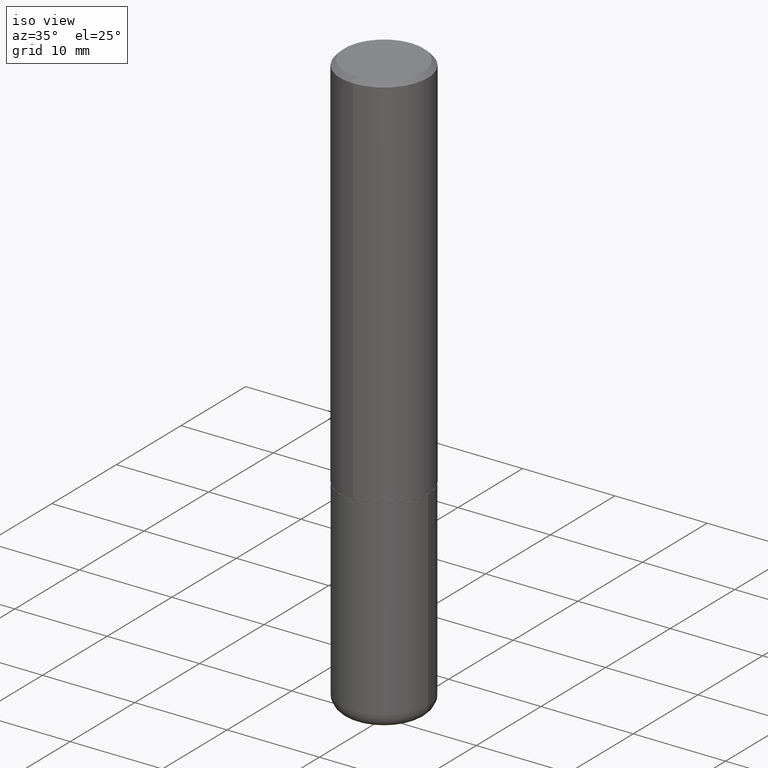
[diagram: clean part render]
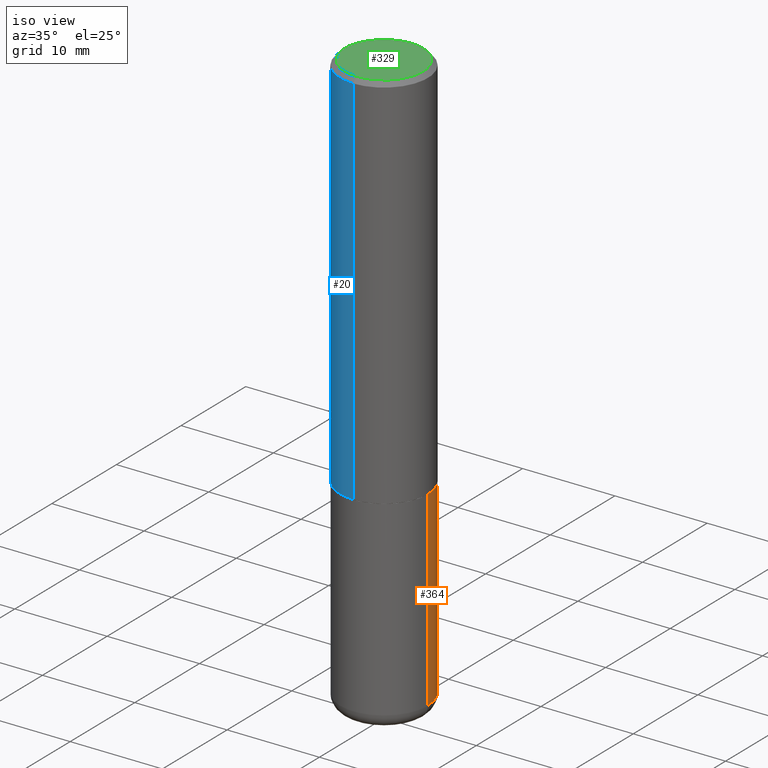
[diagram: same view with three faces highlighted in distinct colors, each labeled with its STEP entity id]
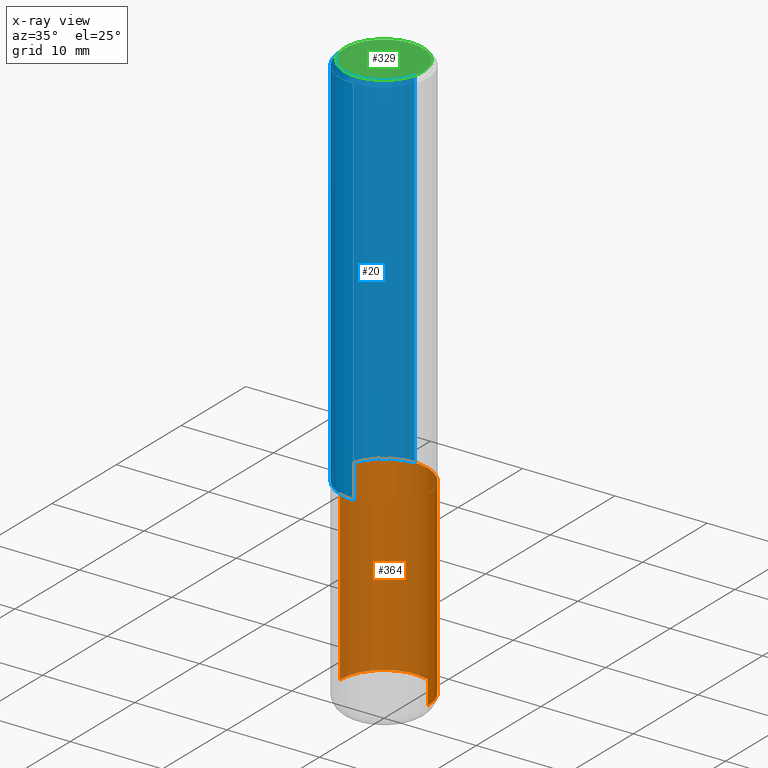
[diagram: x-ray of the same camera — body ghosted, the three highlighted faces saturated]
A machine part, iso view with three faces highlighted in distinct colors.
The next image is the same camera in x-ray (body ghosted, the three faces saturated) — at least one of them is partly hidden behind the body in this view.
Their STEP definitions:

[orange] entity #364 — the highlighted cylindrical surface (partial cylindrical patch) has radius 4.7625 mm, axis along (-0, 0, 1).
#1 = AXIS2_PLACEMENT_3D ( 'NONE', #33, #59, #215 ) ;
#16 = CARTESIAN_POINT ( 'NONE',  ( -0.1875000000000001110, -7.186946837227087200E-15, -2.440000000000000391 ) ) ;
#29 = CARTESIAN_POINT ( 'NONE',  ( 0.000000000000000000, 0.000000000000000000, 0.000000000000000000 ) ) ;
#32 = EDGE_LOOP ( 'NONE', ( #93, #320, #287, #91 ) ) ;
#33 = CARTESIAN_POINT ( 'NONE',  ( 3.973886810050848091E-29, -5.673657175620113002E-15, -1.625000000000000222 ) ) ;
#58 = DIRECTION ( 'NONE',  ( 1.000000000000000000, -6.982962677686266711E-15, 4.876176775795935793E-29 ) ) ;
#59 = DIRECTION ( 'NONE',  ( -2.445468806185136597E-29, 3.491481338843145583E-15, 1.000000000000000000 ) ) ;
#76 = AXIS2_PLACEMENT_3D ( 'NONE', #119, #403, #337 ) ;
#81 = CIRCLE ( 'NONE', #1, 0.1875000000000000278 ) ;
#91 = ORIENTED_EDGE ( 'NONE', *, *, #285, .F. ) ;
#93 = ORIENTED_EDGE ( 'NONE', *, *, #236, .T. ) ;
#106 = CARTESIAN_POINT ( 'NONE',  ( -0.1874999999999999722, 1.332267629550187651E-15, -9.223003294227946589E-30 ) ) ;
#119 = CARTESIAN_POINT ( 'NONE',  ( 5.966943887091733341E-29, -8.519214466777275048E-15, -2.440000000000000391 ) ) ;
#144 = LINE ( 'NONE', #267, #231 ) ;
#164 = CARTESIAN_POINT ( 'NONE',  ( 0.1875000000000001110, -9.828519968843450056E-15, -2.440000000000000391 ) ) ;
#168 = VERTEX_POINT ( 'NONE', #310 ) ;
#215 = DIRECTION ( 'NONE',  ( 1.000000000000000000, -6.982962677686266711E-15, 0.000000000000000000 ) ) ;
#218 = VERTEX_POINT ( 'NONE', #222 ) ;
#222 = CARTESIAN_POINT ( 'NONE',  ( 0.1875000000000000278, -6.982962677686288010E-15, -1.625000000000000222 ) ) ;
#224 = EDGE_CURVE ( 'NONE', #218, #168, #81, .T. ) ;
#225 = CIRCLE ( 'NONE', #76, 0.1874999999999999722 ) ;
#231 = VECTOR ( 'NONE', #399, 39.37007874015748143 ) ;
#236 = EDGE_CURVE ( 'NONE', #348, #259, #225, .T. ) ;
#252 = CYLINDRICAL_SURFACE ( 'NONE', #383, 0.1874999999999999722 ) ;
#259 = VERTEX_POINT ( 'NONE', #16 ) ;
#267 = CARTESIAN_POINT ( 'NONE',  ( 0.1874999999999999722, -1.309305502066174811E-15, 9.142831454617378210E-30 ) ) ;
#268 = DIRECTION ( 'NONE',  ( -2.445468806185136877E-29, 3.491481338843145188E-15, 1.000000000000000000 ) ) ;
#285 = EDGE_CURVE ( 'NONE', #348, #218, #144, .T. ) ;
#287 = ORIENTED_EDGE ( 'NONE', *, *, #224, .F. ) ;
#310 = CARTESIAN_POINT ( 'NONE',  ( -0.1875000000000000278, -5.764168191648507360E-15, -1.625000000000000222 ) ) ;
#320 = ORIENTED_EDGE ( 'NONE', *, *, #411, .T. ) ;
#335 = LINE ( 'NONE', #106, #401 ) ;
#337 = DIRECTION ( 'NONE',  ( 1.000000000000000000, -6.982962677686263555E-15, 0.000000000000000000 ) ) ;
#348 = VERTEX_POINT ( 'NONE', #164 ) ;
#357 = FACE_OUTER_BOUND ( 'NONE', #32, .T. ) ;
#364 = ADVANCED_FACE ( 'NONE', ( #357 ), #252, .T. ) ;
#383 = AXIS2_PLACEMENT_3D ( 'NONE', #29, #417, #58 ) ;
#399 = DIRECTION ( 'NONE',  ( -2.445468806185136877E-29, 3.491481338843145188E-15, 1.000000000000000000 ) ) ;
#401 = VECTOR ( 'NONE', #268, 39.37007874015748143 ) ;
#403 = DIRECTION ( 'NONE',  ( -2.445468806185136597E-29, 3.491481338843145583E-15, 1.000000000000000000 ) ) ;
#411 = EDGE_CURVE ( 'NONE', #259, #168, #335, .T. ) ;
#417 = DIRECTION ( 'NONE',  ( -2.445468806185136597E-29, 3.491481338843145583E-15, 1.000000000000000000 ) ) ;

[blue] entity #20 — the highlighted cylindrical surface (partial cylindrical patch) has radius 4.7625 mm, axis along (-0, 0, 1).
#2 = ORIENTED_EDGE ( 'NONE', *, *, #318, .F. ) ;
#10 = DIRECTION ( 'NONE',  ( -2.444664747397133900E-29, 3.492632796791749246E-15, 1.000000000000000000 ) ) ;
#12 = DIRECTION ( 'NONE',  ( -6.982962677686266711E-15, -1.000000000000000000, 3.483106191921935949E-15 ) ) ;
#20 = ADVANCED_FACE ( 'NONE', ( #97 ), #353, .T. ) ;
#24 = LINE ( 'NONE', #122, #177 ) ;
#45 = CARTESIAN_POINT ( 'NONE',  ( 4.889329494794278169E-31, -6.985265593583513974E-17, -0.02000000000000004205 ) ) ;
#49 = AXIS2_PLACEMENT_3D ( 'NONE', #45, #175, #12 ) ;
#65 = ORIENTED_EDGE ( 'NONE', *, *, #181, .F. ) ;
#67 = EDGE_CURVE ( 'NONE', #137, #406, #196, .T. ) ;
#75 = CARTESIAN_POINT ( 'NONE',  ( -1.286343374582161379E-15, -0.1875000000000000555, -0.01999999999999938979 ) ) ;
#84 = ORIENTED_EDGE ( 'NONE', *, *, #255, .T. ) ;
#97 = FACE_OUTER_BOUND ( 'NONE', #130, .T. ) ;
#117 = CARTESIAN_POINT ( 'NONE',  ( 1.309305502066175205E-15, 0.1874999999999999167, -0.02000000000000069431 ) ) ;
#122 = CARTESIAN_POINT ( 'NONE',  ( 1.332267629550188440E-15, 0.1875000000000001110, -6.548686493984534028E-16 ) ) ;
#130 = EDGE_LOOP ( 'NONE', ( #65, #84, #217, #2 ) ) ;
#137 = VERTEX_POINT ( 'NONE', #205 ) ;
#152 = CARTESIAN_POINT ( 'NONE',  ( 1.332267629550208753E-15, 0.1874999999999945599, -1.624000000000000776 ) ) ;
#158 = VERTEX_POINT ( 'NONE', #152 ) ;
#165 = DIRECTION ( 'NONE',  ( -6.982962677686266711E-15, -1.000000000000000000, 3.492632796791749246E-15 ) ) ;
#175 = DIRECTION ( 'NONE',  ( -2.444664747397133900E-29, 3.492632796791749246E-15, 1.000000000000000000 ) ) ;
#177 = VECTOR ( 'NONE', #244, 39.37007874015748143 ) ;
#181 = EDGE_CURVE ( 'NONE', #158, #187, #24, .T. ) ;
#182 = DIRECTION ( 'NONE',  ( -2.444664747397133900E-29, 3.492632796791749246E-15, 1.000000000000000000 ) ) ;
#187 = VERTEX_POINT ( 'NONE', #117 ) ;
#196 = LINE ( 'NONE', #327, #293 ) ;
#205 = CARTESIAN_POINT ( 'NONE',  ( -1.309305502066136748E-15, -0.1875000000000058842, -1.623999999999999666 ) ) ;
#217 = ORIENTED_EDGE ( 'NONE', *, *, #67, .T. ) ;
#219 = CARTESIAN_POINT ( 'NONE',  ( 0.000000000000000000, 0.000000000000000000, 0.000000000000000000 ) ) ;
#244 = DIRECTION ( 'NONE',  ( -2.444664747397133900E-29, 3.492632796791749246E-15, 1.000000000000000000 ) ) ;
#255 = EDGE_CURVE ( 'NONE', #158, #137, #311, .T. ) ;
#293 = VECTOR ( 'NONE', #10, 39.37007874015748143 ) ;
#300 = AXIS2_PLACEMENT_3D ( 'NONE', #219, #355, #165 ) ;
#302 = CIRCLE ( 'NONE', #49, 0.1874999999999999722 ) ;
#311 = CIRCLE ( 'NONE', #395, 0.1875000000000002220 ) ;
#318 = EDGE_CURVE ( 'NONE', #187, #406, #302, .T. ) ;
#327 = CARTESIAN_POINT ( 'NONE',  ( -1.309305502066175797E-15, -0.1875000000000001110, 6.548686493984534028E-16 ) ) ;
#347 = CARTESIAN_POINT ( 'NONE',  ( 3.970135549772946054E-29, -5.672035661989801997E-15, -1.624000000000000110 ) ) ;
#353 = CYLINDRICAL_SURFACE ( 'NONE', #300, 0.1875000000000001110 ) ;
#355 = DIRECTION ( 'NONE',  ( -2.444664747397133900E-29, 3.492632796791749246E-15, 1.000000000000000000 ) ) ;
#378 = DIRECTION ( 'NONE',  ( -6.982962677686265922E-15, -1.000000000000000000, 2.913971193241877216E-15 ) ) ;
#395 = AXIS2_PLACEMENT_3D ( 'NONE', #347, #182, #378 ) ;
#406 = VERTEX_POINT ( 'NONE', #75 ) ;

[green] entity #329 — the highlighted planar face has unit normal (0, -0, -1).
#17 = VERTEX_POINT ( 'NONE', #133 ) ;
#54 = DIRECTION ( 'NONE',  ( -6.982962677686265133E-15, -1.000000000000000000, 3.492632796791748457E-15 ) ) ;
#72 = ORIENTED_EDGE ( 'NONE', *, *, #356, .T. ) ;
#74 = AXIS2_PLACEMENT_3D ( 'NONE', #314, #380, #54 ) ;
#78 = FACE_OUTER_BOUND ( 'NONE', #156, .T. ) ;
#90 = DIRECTION ( 'NONE',  ( -2.444664747397133900E-29, 3.492632796791749246E-15, 1.000000000000000000 ) ) ;
#112 = AXIS2_PLACEMENT_3D ( 'NONE', #323, #155, #312 ) ;
#132 = CARTESIAN_POINT ( 'NONE',  ( 1.239475875289312893E-15, 0.1675000000000002043, -8.067857737414488588E-16 ) ) ;
#133 = CARTESIAN_POINT ( 'NONE',  ( -1.217738394604446837E-15, -0.1675000000000002043, 3.632462131837884068E-16 ) ) ;
#155 = DIRECTION ( 'NONE',  ( 2.444664747397133900E-29, -3.492632796791749246E-15, -1.000000000000000000 ) ) ;
#156 = EDGE_LOOP ( 'NONE', ( #412, #72 ) ) ;
#163 = EDGE_CURVE ( 'NONE', #366, #17, #360, .T. ) ;
#214 = CARTESIAN_POINT ( 'NONE',  ( 5.421527638856644098E-45, -7.745604079391426345E-31, -2.217697802788302260E-16 ) ) ;
#221 = DIRECTION ( 'NONE',  ( -6.982962677686265133E-15, -1.000000000000000000, 3.492632796791748457E-15 ) ) ;
#240 = AXIS2_PLACEMENT_3D ( 'NONE', #214, #90, #221 ) ;
#312 = DIRECTION ( 'NONE',  ( 6.982962677686265922E-15, 1.000000000000000000, -3.492632796791749246E-15 ) ) ;
#314 = CARTESIAN_POINT ( 'NONE',  ( 5.421527638856644098E-45, -7.745604079391426345E-31, -2.217697802788302260E-16 ) ) ;
#323 = CARTESIAN_POINT ( 'NONE',  ( 1.169646248512450778E-15, 0.1675000000000002043, -6.959008836020338198E-16 ) ) ;
#329 = ADVANCED_FACE ( 'NONE', ( #78 ), #350, .F. ) ;
#349 = CIRCLE ( 'NONE', #240, 0.1675000000000002043 ) ;
#350 = PLANE ( 'NONE',  #112 ) ;
#356 = EDGE_CURVE ( 'NONE', #17, #366, #349, .T. ) ;
#360 = CIRCLE ( 'NONE', #74, 0.1675000000000002043 ) ;
#366 = VERTEX_POINT ( 'NONE', #132 ) ;
#380 = DIRECTION ( 'NONE',  ( -2.444664747397133900E-29, 3.492632796791749246E-15, 1.000000000000000000 ) ) ;
#412 = ORIENTED_EDGE ( 'NONE', *, *, #163, .T. ) ;